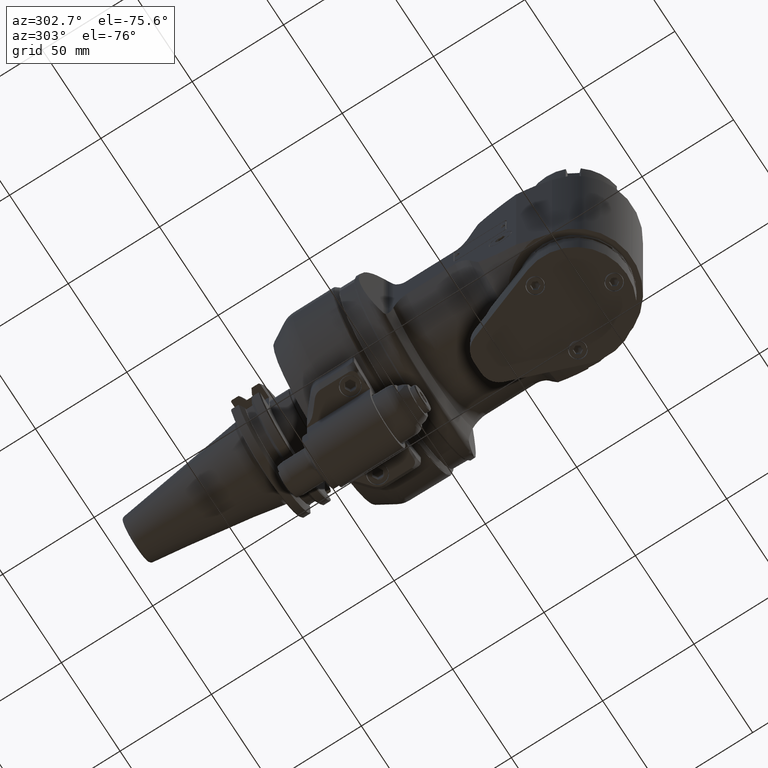
[diagram: clean part render]
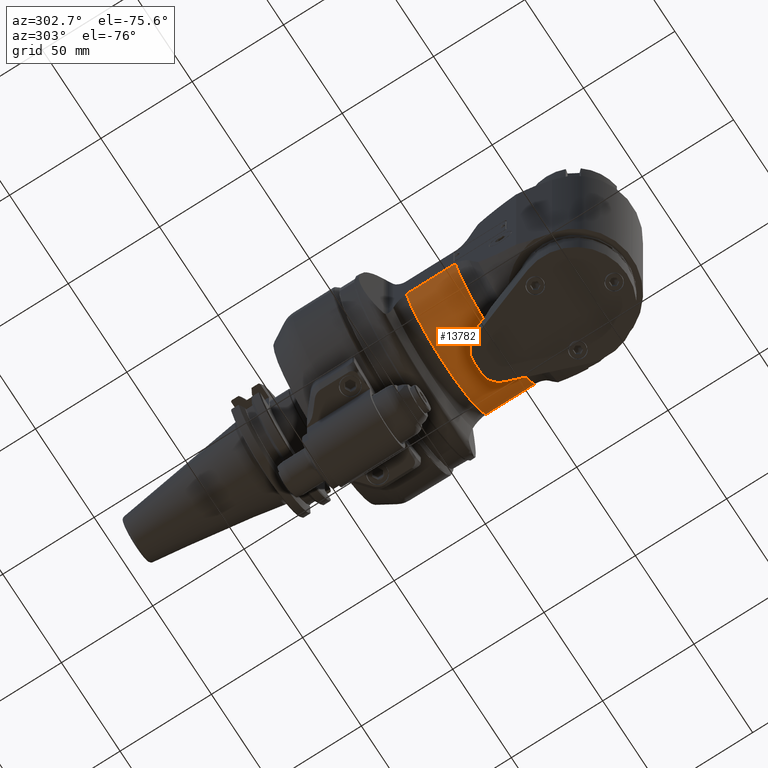
[diagram: same view with one face highlighted and labeled with its STEP entity id]
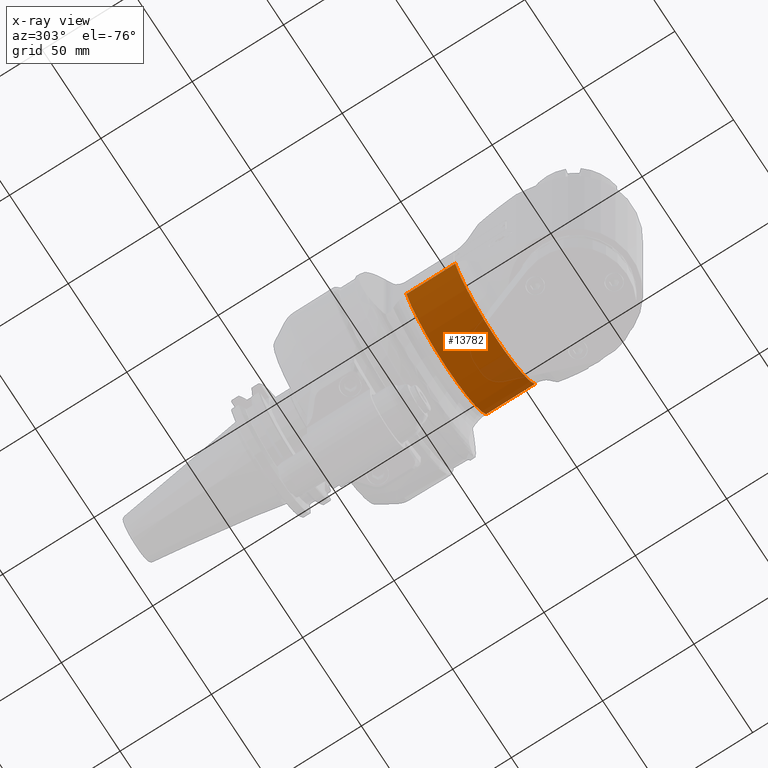
[diagram: x-ray of the same camera — body ghosted, the highlighted face saturated]
A machine part, auxiliary view. The second image highlights one B-rep face of the part: STEP entity #13782.
The next image is the same camera in x-ray: the body ghosted, the highlighted face saturated — about 9% of this face is hidden behind the body in this view.
In plain terms, the highlighted cylindrical surface (partial cylindrical patch) has radius 36 mm, axis along (-0, 1, 0).
Its self-contained STEP definition (entity closure, byte-faithful):
#73=CYLINDRICAL_SURFACE('',#14763,36.);
#761=LINE('',#20788,#1648);
#776=LINE('',#21065,#1663);
#1648=VECTOR('',#16365,26.67897826015);
#1663=VECTOR('',#16438,26.67897826021);
#2974=FACE_OUTER_BOUND('',#3845,.T.);
#3845=EDGE_LOOP('',(#9650,#9651,#9652,#9653));
#4835=CIRCLE('',#14762,36.);
#4836=CIRCLE('',#14764,36.);
#5883=VERTEX_POINT('',#20774);
#5884=VERTEX_POINT('',#20787);
#5947=VERTEX_POINT('',#21053);
#5948=VERTEX_POINT('',#21064);
#7277=EDGE_CURVE('',#5884,#5883,#761,.T.);
#7352=EDGE_CURVE('',#5948,#5947,#776,.T.);
#7397=EDGE_CURVE('',#5948,#5883,#4835,.T.);
#7398=EDGE_CURVE('',#5884,#5947,#4836,.T.);
#9650=ORIENTED_EDGE('',*,*,#7398,.F.);
#9651=ORIENTED_EDGE('',*,*,#7277,.T.);
#9652=ORIENTED_EDGE('',*,*,#7397,.F.);
#9653=ORIENTED_EDGE('',*,*,#7352,.T.);
#13782=ADVANCED_FACE('',(#2974),#73,.T.);
#14762=AXIS2_PLACEMENT_3D('',#21189,#16558,#16559);
#14763=AXIS2_PLACEMENT_3D('',#21190,#16560,#16561);
#14764=AXIS2_PLACEMENT_3D('',#21191,#16562,#16563);
#16365=DIRECTION('',(-1.,0.,0.));
#16438=DIRECTION('',(1.,0.,0.));
#16558=DIRECTION('center_axis',(-1.,0.,0.));
#16559=DIRECTION('ref_axis',(0.,0.328671099061113,0.944444444444437));
#16560=DIRECTION('center_axis',(-1.,0.,0.));
#16561=DIRECTION('ref_axis',(0.,1.,1.22464679914735E-16));
#16562=DIRECTION('center_axis',(1.,0.,0.));
#16563=DIRECTION('ref_axis',(0.,1.,0.));
#20774=CARTESIAN_POINT('',(207.1879662404,11.8321595662,-34.));
#20787=CARTESIAN_POINT('',(233.8669445005,11.8321595662,-34.));
#20788=CARTESIAN_POINT('',(233.8669445005,11.8321595662,-34.));
#21053=CARTESIAN_POINT('',(233.8669445006,11.8321595662,34.));
#21064=CARTESIAN_POINT('',(207.1879662404,11.8321595662,34.));
#21065=CARTESIAN_POINT('',(207.1879662404,11.8321595662,34.));
#21189=CARTESIAN_POINT('Origin',(207.1879662404,0.,0.));
#21190=CARTESIAN_POINT('Origin',(217.7095440971,0.,0.));
#21191=CARTESIAN_POINT('Origin',(233.8669445005,0.,0.));